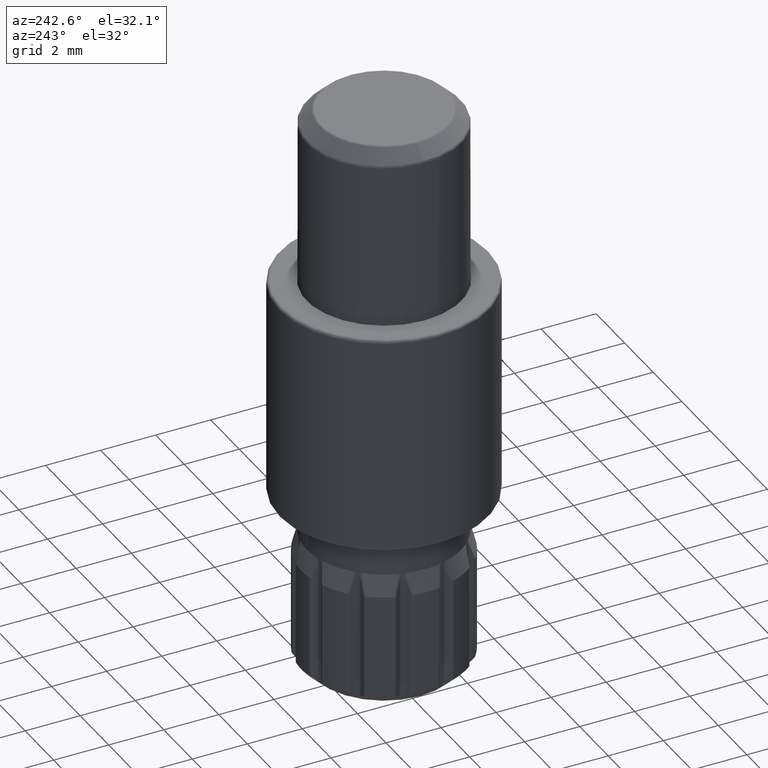
[diagram: clean part render]
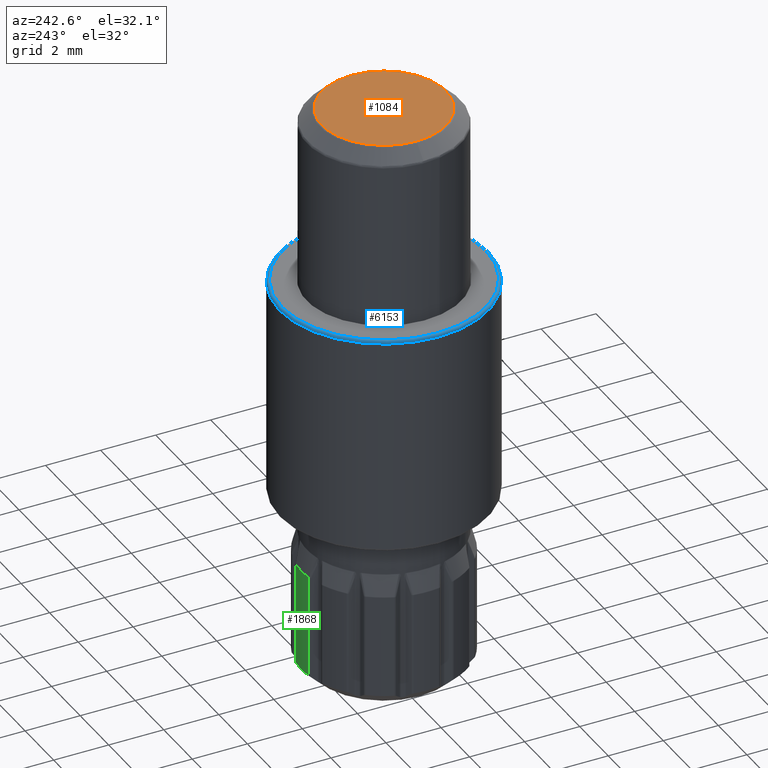
[diagram: same view with three faces highlighted in distinct colors, each labeled with its STEP entity id]
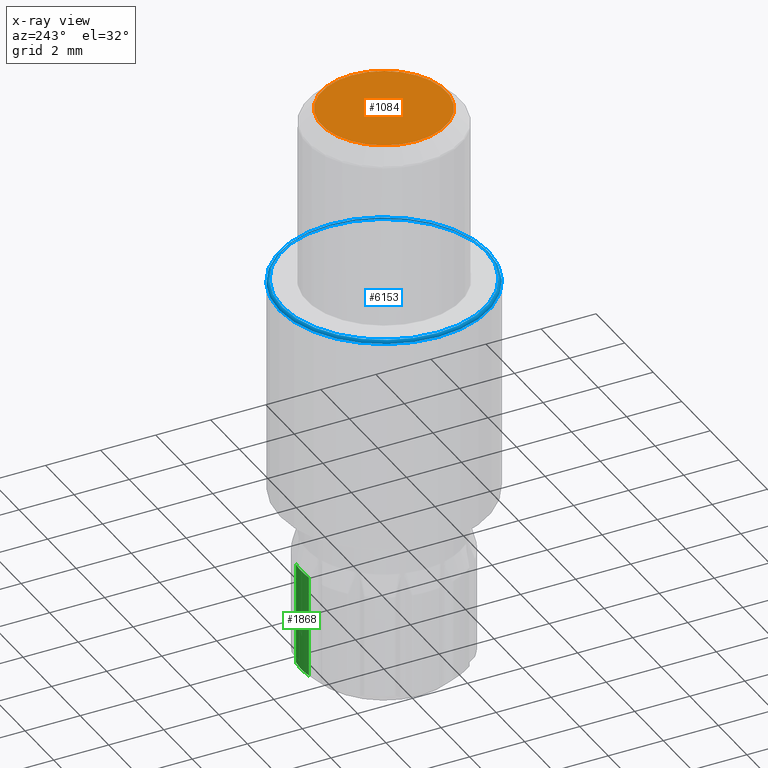
[diagram: x-ray of the same camera — body ghosted, the three highlighted faces saturated]
A machine part, auxiliary view with three faces highlighted in distinct colors.
The next image is the same camera in x-ray (body ghosted, the three faces saturated) — at least one of them is partly hidden behind the body in this view.
Their STEP definitions:

[orange] entity #1084 — the highlighted planar face has unit normal (0, 0, 1).
#232 = DIRECTION ( 'NONE',  ( 0.000000000000000000, 0.000000000000000000, 1.000000000000000000 ) ) ;
#617 = FACE_OUTER_BOUND ( 'NONE', #3820, .T. ) ;
#644 = CARTESIAN_POINT ( 'NONE',  ( 0.000000000000000000, 0.000000000000000000, 21.00000000000000000 ) ) ;
#870 = DIRECTION ( 'NONE',  ( 1.000000000000000000, 0.000000000000000000, -0.000000000000000000 ) ) ;
#1084 = ADVANCED_FACE ( 'NONE', ( #617 ), #3672, .T. ) ;
#1205 = ORIENTED_EDGE ( 'NONE', *, *, #6503, .T. ) ;
#1410 = VERTEX_POINT ( 'NONE', #2760 ) ;
#1774 = DIRECTION ( 'NONE',  ( 0.000000000000000000, 0.000000000000000000, 1.000000000000000000 ) ) ;
#2760 = CARTESIAN_POINT ( 'NONE',  ( 2.258578643762697791, 0.000000000000000000, 21.00000000000000000 ) ) ;
#3647 = CARTESIAN_POINT ( 'NONE',  ( 0.000000000000000000, 0.000000000000000000, 21.00000000000000000 ) ) ;
#3672 = PLANE ( 'NONE',  #4368 ) ;
#3820 = EDGE_LOOP ( 'NONE', ( #1205 ) ) ;
#4168 = AXIS2_PLACEMENT_3D ( 'NONE', #644, #1774, #5209 ) ;
#4368 = AXIS2_PLACEMENT_3D ( 'NONE', #3647, #232, #870 ) ;
#5209 = DIRECTION ( 'NONE',  ( 1.000000000000000000, 0.000000000000000000, 0.000000000000000000 ) ) ;
#6503 = EDGE_CURVE ( 'NONE', #1410, #1410, #6942, .T. ) ;
#6942 = CIRCLE ( 'NONE', #4168, 2.258578643762697791 ) ;

[blue] entity #6153 — the highlighted toroidal blend (fillet) surface has major radius 3.7 mm and minor (blend) radius 0.1 mm.
#119 = DIRECTION ( 'NONE',  ( -0.000000000000000000, -0.000000000000000000, -1.000000000000000000 ) ) ;
#403 = VERTEX_POINT ( 'NONE', #5632 ) ;
#473 = DIRECTION ( 'NONE',  ( 0.000000000000000000, 0.000000000000000000, 1.000000000000000000 ) ) ;
#1077 = CARTESIAN_POINT ( 'NONE',  ( 3.700000000000000178, 0.000000000000000000, 8.000000000000000000 ) ) ;
#1427 = ORIENTED_EDGE ( 'NONE', *, *, #6349, .F. ) ;
#1977 = EDGE_LOOP ( 'NONE', ( #1427 ) ) ;
#2127 = FACE_OUTER_BOUND ( 'NONE', #1977, .T. ) ;
#2446 = DIRECTION ( 'NONE',  ( 1.000000000000000000, 0.000000000000000000, 0.000000000000000000 ) ) ;
#2618 = ORIENTED_EDGE ( 'NONE', *, *, #6701, .F. ) ;
#2704 = DIRECTION ( 'NONE',  ( 1.000000000000000000, 0.000000000000000000, 0.000000000000000000 ) ) ;
#2797 = AXIS2_PLACEMENT_3D ( 'NONE', #7012, #119, #4685 ) ;
#3302 = CARTESIAN_POINT ( 'NONE',  ( 0.000000000000000000, 0.000000000000000000, 8.000000000000000000 ) ) ;
#3634 = DIRECTION ( 'NONE',  ( 0.000000000000000000, 0.000000000000000000, 1.000000000000000000 ) ) ;
#4201 = CIRCLE ( 'NONE', #2797, 3.799999999999999822 ) ;
#4382 = FACE_OUTER_BOUND ( 'NONE', #6212, .T. ) ;
#4603 = AXIS2_PLACEMENT_3D ( 'NONE', #5426, #3634, #2446 ) ;
#4685 = DIRECTION ( 'NONE',  ( 1.000000000000000000, 0.000000000000000000, 0.000000000000000000 ) ) ;
#5426 = CARTESIAN_POINT ( 'NONE',  ( 0.000000000000000000, 0.000000000000000000, 7.900000000000000355 ) ) ;
#5632 = CARTESIAN_POINT ( 'NONE',  ( 3.799999999999999822, 0.000000000000000000, 7.900000000000000355 ) ) ;
#5817 = VERTEX_POINT ( 'NONE', #1077 ) ;
#5842 = TOROIDAL_SURFACE ( 'NONE', #4603, 3.700000000000000178, 0.1000000000000000056 ) ;
#6153 = ADVANCED_FACE ( 'NONE', ( #2127, #4382 ), #5842, .T. ) ;
#6212 = EDGE_LOOP ( 'NONE', ( #2618 ) ) ;
#6349 = EDGE_CURVE ( 'NONE', #403, #403, #4201, .T. ) ;
#6659 = CIRCLE ( 'NONE', #7435, 3.700000000000000178 ) ;
#6701 = EDGE_CURVE ( 'NONE', #5817, #5817, #6659, .T. ) ;
#7012 = CARTESIAN_POINT ( 'NONE',  ( 0.000000000000000000, 0.000000000000000000, 7.900000000000000355 ) ) ;
#7435 = AXIS2_PLACEMENT_3D ( 'NONE', #3302, #473, #2704 ) ;

[green] entity #1868 — the highlighted cylindrical surface (partial cylindrical patch) has radius 3 mm, axis along (0, 0, -1).
#2 = VERTEX_POINT ( 'NONE', #857 ) ;
#248 = CARTESIAN_POINT ( 'NONE',  ( -0.4550462594151337137, 2.965287996433449091, 4.236895632593501659 ) ) ;
#342 = CIRCLE ( 'NONE', #3828, 3.000000000000000444 ) ;
#355 = CARTESIAN_POINT ( 'NONE',  ( 0.4550462594151337137, 2.965287996433449091, 4.236895632593499883 ) ) ;
#604 = CARTESIAN_POINT ( 'NONE',  ( 0.000000000000000000, 0.000000000000000000, 5.000000000000000000 ) ) ;
#857 = CARTESIAN_POINT ( 'NONE',  ( -0.4550462594151336582, 2.965287996433448203, 0.4999999999999998890 ) ) ;
#1344 = CIRCLE ( 'NONE', #3578, 3.000000000000000000 ) ;
#1374 = LINE ( 'NONE', #6343, #4507 ) ;
#1518 = LINE ( 'NONE', #2872, #7491 ) ;
#1718 = DIRECTION ( 'NONE',  ( 1.000000000000000000, 1.065814103640150279E-14, 0.000000000000000000 ) ) ;
#1745 = CARTESIAN_POINT ( 'NONE',  ( 0.4550462594151336582, 2.965287996433448203, 0.4999999999999998890 ) ) ;
#1868 = ADVANCED_FACE ( 'NONE', ( #2431 ), #2787, .T. ) ;
#2190 = DIRECTION ( 'NONE',  ( -0.000000000000000000, -0.000000000000000000, 1.000000000000000000 ) ) ;
#2355 = DIRECTION ( 'NONE',  ( 0.000000000000000000, 0.000000000000000000, -1.000000000000000000 ) ) ;
#2360 = EDGE_CURVE ( 'NONE', #2, #6142, #1374, .T. ) ;
#2374 = EDGE_LOOP ( 'NONE', ( #7254, #6003, #7269, #5289 ) ) ;
#2431 = FACE_OUTER_BOUND ( 'NONE', #2374, .T. ) ;
#2654 = VERTEX_POINT ( 'NONE', #355 ) ;
#2787 = CYLINDRICAL_SURFACE ( 'NONE', #4967, 3.000000000000000444 ) ;
#2844 = DIRECTION ( 'NONE',  ( 0.000000000000000000, 0.000000000000000000, -1.000000000000000000 ) ) ;
#2872 = CARTESIAN_POINT ( 'NONE',  ( 0.4550462594151337137, 2.965287996433449091, 5.000000000000000000 ) ) ;
#3578 = AXIS2_PLACEMENT_3D ( 'NONE', #5871, #6407, #4678 ) ;
#3828 = AXIS2_PLACEMENT_3D ( 'NONE', #5671, #5096, #1718 ) ;
#4507 = VECTOR ( 'NONE', #2190, 1000.000000000000000 ) ;
#4678 = DIRECTION ( 'NONE',  ( -1.000000000000000000, 0.000000000000000000, 0.000000000000000000 ) ) ;
#4967 = AXIS2_PLACEMENT_3D ( 'NONE', #604, #2844, #7452 ) ;
#5096 = DIRECTION ( 'NONE',  ( 0.000000000000000000, 0.000000000000000000, -1.000000000000000000 ) ) ;
#5289 = ORIENTED_EDGE ( 'NONE', *, *, #6070, .F. ) ;
#5671 = CARTESIAN_POINT ( 'NONE',  ( 0.000000000000000000, 0.000000000000000000, 4.236895632593501659 ) ) ;
#5766 = EDGE_CURVE ( 'NONE', #6142, #2654, #342, .T. ) ;
#5871 = CARTESIAN_POINT ( 'NONE',  ( 0.000000000000000000, 0.000000000000000000, 0.4999999999999998890 ) ) ;
#6003 = ORIENTED_EDGE ( 'NONE', *, *, #5766, .T. ) ;
#6057 = EDGE_CURVE ( 'NONE', #2654, #6354, #1518, .T. ) ;
#6070 = EDGE_CURVE ( 'NONE', #2, #6354, #1344, .T. ) ;
#6142 = VERTEX_POINT ( 'NONE', #248 ) ;
#6343 = CARTESIAN_POINT ( 'NONE',  ( -0.4550462594151337137, 2.965287996433449091, 5.000000000000000000 ) ) ;
#6354 = VERTEX_POINT ( 'NONE', #1745 ) ;
#6407 = DIRECTION ( 'NONE',  ( -0.000000000000000000, -0.000000000000000000, -1.000000000000000000 ) ) ;
#7254 = ORIENTED_EDGE ( 'NONE', *, *, #2360, .T. ) ;
#7269 = ORIENTED_EDGE ( 'NONE', *, *, #6057, .T. ) ;
#7452 = DIRECTION ( 'NONE',  ( -1.000000000000000000, 0.000000000000000000, 0.000000000000000000 ) ) ;
#7491 = VECTOR ( 'NONE', #2355, 1000.000000000000000 ) ;